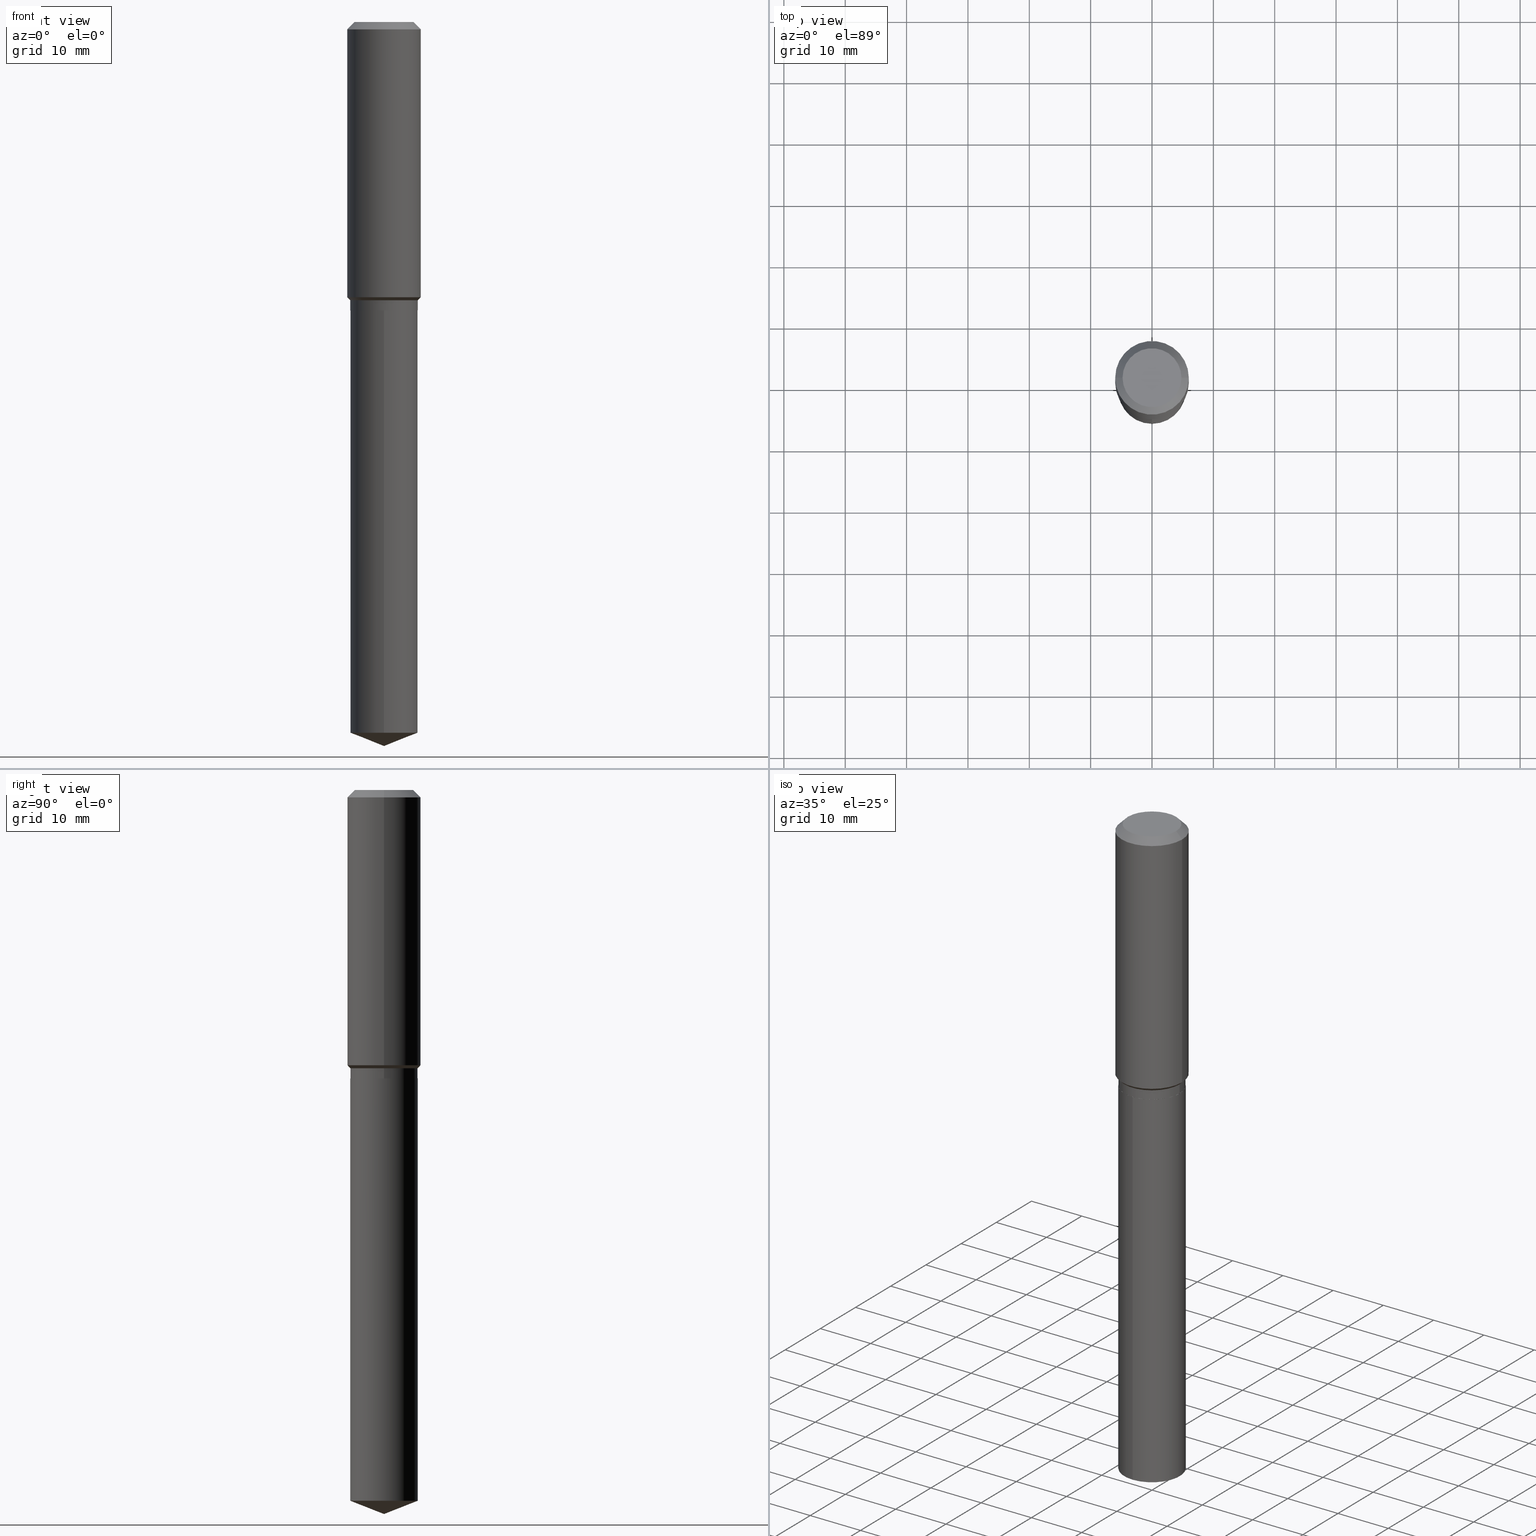
[diagram: canonical four-view strip — front | top / right | iso, engineering-drawing reading convention]
A machine part, canonical four-view strip (front | top / right | iso — engineering-drawing reading convention). The complete STEP part file that produces these views, byte-faithful:
ISO-10303-21;
HEADER;
FILE_DESCRIPTION (( 'STEP AP203' ),
    '1' );
FILE_NAME ('66583.STEP',
    '2024-04-25T01:25:55',
    ( '' ),
    ( '' ),
    'SwSTEP 2.0',
    'SolidWorks 2023',
    '' );
FILE_SCHEMA (( 'CONFIG_CONTROL_DESIGN' ));
ENDSEC;

DATA;
#1 = CYLINDRICAL_SURFACE ( 'NONE', #205, 0.2165500000000000203 ) ;
#2 = ADVANCED_FACE ( 'NONE', ( #372 ), #345, .T. ) ;
#3 = CALENDAR_DATE ( 2024, 24, 4 ) ;
#4 = DIRECTION ( 'NONE',  ( 2.445468806185136597E-29, -3.491481338843145583E-15, -1.000000000000000000 ) ) ;
#5 = COORDINATED_UNIVERSAL_TIME_OFFSET ( 5, 0, .BEHIND. ) ;
#6 = DIRECTION ( 'NONE',  ( 1.000000000000000000, -6.982962677686268288E-15, 0.000000000000000000 ) ) ;
#7 = AXIS2_PLACEMENT_3D ( 'NONE', #83, #35, #301 ) ;
#8 = ORIENTED_EDGE ( 'NONE', *, *, #283, .T. ) ;
#9 = ADVANCED_FACE ( 'NONE', ( #100 ), #333, .F. ) ;
#10 = DIRECTION ( 'NONE',  ( -2.445448598755098634E-29, 3.491510277033095475E-15, 1.000000000000000000 ) ) ;
#11 = AXIS2_PLACEMENT_3D ( 'NONE', #106, #255, #415 ) ;
#12 = VERTEX_POINT ( 'NONE', #142 ) ;
#13 = DIRECTION ( 'NONE',  ( 1.000000000000000000, -6.982962677686265922E-15, 4.876176775795935793E-29 ) ) ;
#14 = ORIENTED_EDGE ( 'NONE', *, *, #371, .T. ) ;
#15 = DIRECTION ( 'NONE',  ( 1.000000000000000000, -6.982962677686266711E-15, 0.000000000000000000 ) ) ;
#16 = VECTOR ( 'NONE', #427, 39.37007874015748143 ) ;
#17 = CC_DESIGN_APPROVAL ( #348, ( #215 ) ) ;
#18 = ORIENTED_EDGE ( 'NONE', *, *, #34, .T. ) ;
#19 = AXIS2_PLACEMENT_3D ( 'NONE', #133, #32, #216 ) ;
#20 = DIRECTION ( 'NONE',  ( -2.445468806185136597E-29, 3.491481338843145583E-15, 1.000000000000000000 ) ) ;
#21 = VERTEX_POINT ( 'NONE', #138 ) ;
#22 = SECURITY_CLASSIFICATION_LEVEL ( 'unclassified' ) ;
#23 = AXIS2_PLACEMENT_3D ( 'NONE', #189, #340, #421 ) ;
#24 = ORIENTED_EDGE ( 'NONE', *, *, #113, .T. ) ;
#25 = DIRECTION ( 'NONE',  ( 1.000000000000000000, -6.982962677686266711E-15, 0.000000000000000000 ) ) ;
#26 = DESIGN_CONTEXT ( 'detailed design', #38, 'design' ) ;
#27 = ORIENTED_EDGE ( 'NONE', *, *, #84, .T. ) ;
#28 = AXIS2_PLACEMENT_3D ( 'NONE', #472, #223, #302 ) ;
#29 = EDGE_CURVE ( 'NONE', #434, #195, #294, .T. ) ;
#30 = CARTESIAN_POINT ( 'NONE',  ( 0.2160500000000000198, -7.970353600311127505E-15, -1.850700000000000012 ) ) ;
#31 = CARTESIAN_POINT ( 'NONE',  ( -0.2165500000000000203, -4.808658205661399770E-15, -1.785700000000000065 ) ) ;
#32 = DIRECTION ( 'NONE',  ( -2.445468806185136597E-29, 3.491481338843145583E-15, 1.000000000000000000 ) ) ;
#33 = CIRCLE ( 'NONE', #473, 0.2165500000000000203 ) ;
#34 = EDGE_CURVE ( 'NONE', #21, #180, #481, .T. ) ;
#35 = DIRECTION ( 'NONE',  ( -2.445468806185136597E-29, 3.491481338843145583E-15, 1.000000000000000000 ) ) ;
#36 = COORDINATED_UNIVERSAL_TIME_OFFSET ( 5, 0, .BEHIND. ) ;
#37 = VECTOR ( 'NONE', #467, 39.37007874015748143 ) ;
#38 = APPLICATION_CONTEXT ( 'configuration controlled 3d designs of mechanical parts and assemblies' ) ;
#39 = APPROVAL_PERSON_ORGANIZATION ( #88, #348, #87 ) ;
#40 = CARTESIAN_POINT ( 'NONE',  ( 4.524606385203739825E-29, -6.459938773127588186E-15, -1.850200000000000067 ) ) ;
#41 = CALENDAR_DATE ( 2024, 24, 4 ) ;
#42 = DIRECTION ( 'NONE',  ( -2.445448598755098634E-29, 3.491510277033095475E-15, 1.000000000000000000 ) ) ;
#43 = CARTESIAN_POINT ( 'NONE',  ( 4.524606385203739825E-29, -6.459938773127588186E-15, -1.850200000000000067 ) ) ;
#44 = DATE_TIME_ROLE ( 'classification_date' ) ;
#45 = EDGE_CURVE ( 'NONE', #434, #67, #320, .T. ) ;
#46 = AXIS2_PLACEMENT_3D ( 'NONE', #462, #237, #256 ) ;
#47 = VECTOR ( 'NONE', #249, 39.37007874015748854 ) ;
#48 = CARTESIAN_POINT ( 'NONE',  ( 4.525829119606832626E-29, -6.461684513797009689E-15, -1.850700000000000012 ) ) ;
#49 = CALENDAR_DATE ( 2024, 24, 4 ) ;
#50 = CARTESIAN_POINT ( 'NONE',  ( 1.155239464041865506E-30, -1.649375784469511859E-16, -0.04724000000000028177 ) ) ;
#51 = EDGE_CURVE ( 'NONE', #12, #218, #285, .T. ) ;
#52 = ORIENTED_EDGE ( 'NONE', *, *, #457, .F. ) ;
#53 = CARTESIAN_POINT ( 'NONE',  ( -4.713871149261273121E-47, 6.730158695841826722E-33, 1.927594061857931128E-18 ) ) ;
#54 = CONICAL_SURFACE ( 'NONE', #175, 0.2160500000000000198, 0.7853981633975507526 ) ;
#55 = ORIENTED_EDGE ( 'NONE', *, *, #291, .T. ) ;
#56 = CARTESIAN_POINT ( 'NONE',  ( -0.2160500000000000198, -4.926556933187313491E-15, -1.850700000000000012 ) ) ;
#57 = ORIENTED_EDGE ( 'NONE', *, *, #463, .T. ) ;
#58 = PERSON ( 'UNSPECIFIED', 'UNSPECIFIED', 'UNSPECIFIED', ('UNSPECIFIED'), ('UNSPECIFIED'), ('UNSPECIFIED') ) ;
#59 = CARTESIAN_POINT ( 'NONE',  ( 0.2165500000000000203, -1.512160567852961217E-15, 1.055936080798610036E-29 ) ) ;
#60 = EDGE_LOOP ( 'NONE', ( #122, #413, #272, #94 ) ) ;
#61 = PLANE ( 'NONE',  #275 ) ;
#62 = EDGE_CURVE ( 'NONE', #180, #238, #280, .T. ) ;
#63 = VECTOR ( 'NONE', #10, 39.37007874015748143 ) ;
#64 = APPROVAL_PERSON_ORGANIZATION ( #407, #257, #338 ) ;
#65 = EDGE_LOOP ( 'NONE', ( #176, #314 ) ) ;
#66 = PERSON_AND_ORGANIZATION_ROLE ( 'creator' ) ;
#67 = VERTEX_POINT ( 'NONE', #288 ) ;
#68 = DIRECTION ( 'NONE',  ( 1.000000000000000000, -6.982962677686268288E-15, 0.000000000000000000 ) ) ;
#69 = ORIENTED_EDGE ( 'NONE', *, *, #62, .F. ) ;
#70 = CARTESIAN_POINT ( 'NONE',  ( 1.538680294288608129E-15, 0.2165499999999840330, -4.560698686505585187 ) ) ;
#71 = ORIENTED_EDGE ( 'NONE', *, *, #332, .T. ) ;
#72 = AXIS2_PLACEMENT_3D ( 'NONE', #347, #4, #154 ) ;
#73 = CLOSED_SHELL ( 'NONE', ( #96, #270, #364, #134, #9 ) ) ;
#74 = ORIENTED_EDGE ( 'NONE', *, *, #113, .F. ) ;
#75 = EDGE_CURVE ( 'NONE', #356, #432, #447, .T. ) ;
#76 = ORIENTED_EDGE ( 'NONE', *, *, #163, .F. ) ;
#77 = PERSON_AND_ORGANIZATION_ROLE ( 'design_owner' ) ;
#78 = FACE_OUTER_BOUND ( 'NONE', #166, .T. ) ;
#79 = DIRECTION ( 'NONE',  ( 0.000000000000000000, 0.000000000000000000, 1.000000000000000000 ) ) ;
#80 = AXIS2_PLACEMENT_3D ( 'NONE', #460, #321, #15 ) ;
#81 = DIRECTION ( 'NONE',  ( -2.445468806185136597E-29, 3.491481338843145583E-15, 1.000000000000000000 ) ) ;
#82 = AXIS2_PLACEMENT_3D ( 'NONE', #297, #474, #135 ) ;
#83 = CARTESIAN_POINT ( 'NONE',  ( 0.000000000000000000, 0.000000000000000000, 0.000000000000000000 ) ) ;
#84 = EDGE_CURVE ( 'NONE', #129, #367, #115, .T. ) ;
#85 = DIRECTION ( 'NONE',  ( 1.000000000000000000, -6.982962677686266711E-15, 0.000000000000000000 ) ) ;
#86 = CIRCLE ( 'NONE', #319, 0.2361999999999999933 ) ;
#87 = APPROVAL_ROLE ( '' ) ;
#88 = PERSON_AND_ORGANIZATION ( #58, #149 ) ;
#89 = ORIENTED_EDGE ( 'NONE', *, *, #486, .F. ) ;
#90 = FACE_OUTER_BOUND ( 'NONE', #354, .T. ) ;
#91 = ORIENTED_EDGE ( 'NONE', *, *, #84, .F. ) ;
#92 = CARTESIAN_POINT ( 'NONE',  ( 0.2361999999999999933, -1.785387205520586782E-15, -0.04724000000000028177 ) ) ;
#93 = CONICAL_SURFACE ( 'NONE', #377, 99.94676754583946376, 1.195550537616117737 ) ;
#94 = ORIENTED_EDGE ( 'NONE', *, *, #371, .F. ) ;
#95 = CARTESIAN_POINT ( 'NONE',  ( 0.2160500000000000198, -7.970353600311127505E-15, -1.850700000000000012 ) ) ;
#96 = ADVANCED_FACE ( 'NONE', ( #78 ), #183, .T. ) ;
#97 = LINE ( 'NONE', #197, #37 ) ;
#98 = EDGE_LOOP ( 'NONE', ( #231, #71, #446, #159 ) ) ;
#99 = DIRECTION ( 'NONE',  ( 2.438088387897960049E-29, -3.491481338843145188E-15, -1.000000000000000000 ) ) ;
#100 = FACE_OUTER_BOUND ( 'NONE', #330, .T. ) ;
#101 = CARTESIAN_POINT ( 'NONE',  ( 4.366873647204798142E-29, -6.234738226772205548E-15, -1.785700000000000065 ) ) ;
#102 = EDGE_CURVE ( 'NONE', #236, #195, #416, .T. ) ;
#103 = ORIENTED_EDGE ( 'NONE', *, *, #193, .F. ) ;
#104 = CARTESIAN_POINT ( 'NONE',  ( 4.525829119606832626E-29, -6.461684513797009689E-15, -1.850700000000000012 ) ) ;
#105 = DIRECTION ( 'NONE',  ( -2.445468806185136877E-29, 3.491481338843145188E-15, 1.000000000000000000 ) ) ;
#106 = CARTESIAN_POINT ( 'NONE',  ( 4.525829119606832626E-29, -6.461684513797009689E-15, -1.850700000000000012 ) ) ;
#107 = CC_DESIGN_PERSON_AND_ORGANIZATION_ASSIGNMENT ( #455, #66, ( #351 ) ) ;
#108 = MANIFOLD_SOLID_BREP ( 'Body-Move/Copy2[1]', #73 ) ;
#109 = FACE_OUTER_BOUND ( 'NONE', #233, .T. ) ;
#110 = COORDINATED_UNIVERSAL_TIME_OFFSET ( 5, 0, .BEHIND. ) ;
#111 = FACE_OUTER_BOUND ( 'NONE', #293, .T. ) ;
#112 = VECTOR ( 'NONE', #456, 39.37007874015748143 ) ;
#113 = EDGE_CURVE ( 'NONE', #367, #129, #33, .T. ) ;
#114 = CARTESIAN_POINT ( 'NONE',  ( 4.525829119606832626E-29, -6.461684513797009689E-15, -1.850700000000000012 ) ) ;
#115 = CIRCLE ( 'NONE', #11, 0.2165500000000000203 ) ;
#116 = CARTESIAN_POINT ( 'NONE',  ( 0.2362000000000001043, -1.649375784469496920E-15, 1.151752954443000508E-29 ) ) ;
#117 = SHAPE_DEFINITION_REPRESENTATION ( #198, #151 ) ;
#118 = EDGE_CURVE ( 'NONE', #213, #325, #259, .T. ) ;
#119 = LINE ( 'NONE', #203, #423 ) ;
#120 = ORIENTED_EDGE ( 'NONE', *, *, #152, .F. ) ;
#121 = DIRECTION ( 'NONE',  ( 1.000000000000000000, -6.982962677686268288E-15, 0.000000000000000000 ) ) ;
#122 = ORIENTED_EDGE ( 'NONE', *, *, #75, .F. ) ;
#123 = CARTESIAN_POINT ( 'NONE',  ( 4.525829119606832626E-29, -6.461684513797009689E-15, -1.850700000000000012 ) ) ;
#124 = EDGE_LOOP ( 'NONE', ( #120, #18, #89 ) ) ;
#125 = DIRECTION ( 'NONE',  ( -2.438088387897960049E-29, 3.491481338843145188E-15, 1.000000000000000000 ) ) ;
#126 = VECTOR ( 'NONE', #418, 39.37007874015748143 ) ;
#127 = AXIS2_PLACEMENT_3D ( 'NONE', #290, #79, #225 ) ;
#128 = ADVANCED_FACE ( 'NONE', ( #375 ), #190, .T. ) ;
#129 = VERTEX_POINT ( 'NONE', #336 ) ;
#130 = FACE_OUTER_BOUND ( 'NONE', #65, .T. ) ;
#131 = ORIENTED_EDGE ( 'NONE', *, *, #486, .T. ) ;
#132 = DIRECTION ( 'NONE',  ( -2.445468806185136877E-29, 3.491481338843145188E-15, 1.000000000000000000 ) ) ;
#133 = CARTESIAN_POINT ( 'NONE',  ( 4.366873647204798142E-29, -6.234738226772205548E-15, -1.785700000000000065 ) ) ;
#134 = ADVANCED_FACE ( 'NONE', ( #109 ), #343, .T. ) ;
#135 = DIRECTION ( 'NONE',  ( -6.982962677686265133E-15, -1.000000000000000000, 2.523064413451178124E-15 ) ) ;
#136 =( LENGTH_UNIT ( ) NAMED_UNIT ( * ) SI_UNIT ( $, .METRE. ) );
#137 = DIRECTION ( 'NONE',  ( 1.000000000000000000, -6.982962677686266711E-15, 4.876176775795935793E-29 ) ) ;
#138 = CARTESIAN_POINT ( 'NONE',  ( 1.136155418981619075E-28, -1.622155674709576267E-14, -4.645999999999999908 ) ) ;
#139 = CARTESIAN_POINT ( 'NONE',  ( 0.2165500000000000203, -7.746898794625167159E-15, -1.785700000000000065 ) ) ;
#140 = CIRCLE ( 'NONE', #80, 0.2361999999999999933 ) ;
#141 = EDGE_CURVE ( 'NONE', #238, #367, #224, .T. ) ;
#142 = CARTESIAN_POINT ( 'NONE',  ( 0.2165500000000000203, -7.746898794625167159E-15, -1.785700000000000065 ) ) ;
#143 = FACE_OUTER_BOUND ( 'NONE', #471, .T. ) ;
#144 = CYLINDRICAL_SURFACE ( 'NONE', #7, 0.2165500000000000203 ) ;
#145 =( CONVERSION_BASED_UNIT ( 'INCH', #476 ) LENGTH_UNIT ( ) NAMED_UNIT ( #388 ) );
#146 = CARTESIAN_POINT ( 'NONE',  ( 4.318820185163259676E-29, -6.166130618463936908E-15, -1.766049999999999898 ) ) ;
#147 = APPLICATION_PROTOCOL_DEFINITION ( 'international standard', 'config_control_design', 1994, #299 ) ;
#148 = CIRCLE ( 'NONE', #46, 0.2362000000000002153 ) ;
#149 = ORGANIZATION ( 'UNSPECIFIED', 'UNSPECIFIED', '' ) ;
#150 = DIRECTION ( 'NONE',  ( -2.445468806185136597E-29, 3.491481338843145583E-15, 1.000000000000000000 ) ) ;
#151 = ADVANCED_BREP_SHAPE_REPRESENTATION ( '66583', ( #108, #435, #127 ), #244 ) ;
#152 = EDGE_CURVE ( 'NONE', #21, #238, #484, .T. ) ;
#153 = AXIS2_PLACEMENT_3D ( 'NONE', #40, #81, #222 ) ;
#154 = DIRECTION ( 'NONE',  ( -1.000000000000000000, 6.982962677686266711E-15, 0.000000000000000000 ) ) ;
#155 = APPROVAL_DATE_TIME ( #309, #348 ) ;
#156 = ORIENTED_EDGE ( 'NONE', *, *, #45, .T. ) ;
#157 = VECTOR ( 'NONE', #487, 39.37007874015748143 ) ;
#158 = LINE ( 'NONE', #313, #63 ) ;
#159 = ORIENTED_EDGE ( 'NONE', *, *, #305, .F. ) ;
#160 = CYLINDRICAL_SURFACE ( 'NONE', #360, 0.2362000000000001043 ) ;
#161 = EDGE_LOOP ( 'NONE', ( #156, #55, #400, #199 ) ) ;
#162 = DIRECTION ( 'NONE',  ( -1.000000000000000000, 6.982962677686266711E-15, 0.000000000000000000 ) ) ;
#163 = EDGE_CURVE ( 'NONE', #218, #389, #380, .T. ) ;
#164 = ORIENTED_EDGE ( 'NONE', *, *, #207, .T. ) ;
#165 = DIRECTION ( 'NONE',  ( -0.7071067811865453523, 2.468850131082234184E-15, -0.7071067811865496822 ) ) ;
#166 = EDGE_LOOP ( 'NONE', ( #464, #398, #91, #52 ) ) ;
#167 = PLANE ( 'NONE',  #368 ) ;
#168 = VECTOR ( 'NONE', #105, 39.37007874015748143 ) ;
#169 = PRODUCT_RELATED_PRODUCT_CATEGORY ( 'detail', '', ( #289 ) ) ;
#170 = EDGE_LOOP ( 'NONE', ( #316, #410, #69 ) ) ;
#171 = PERSON_AND_ORGANIZATION ( #58, #149 ) ;
#172 = CARTESIAN_POINT ( 'NONE',  ( 1.136155418981619075E-28, -1.622155674709576267E-14, -4.645999999999999908 ) ) ;
#173 =( NAMED_UNIT ( * ) SI_UNIT ( $, .STERADIAN. ) SOLID_ANGLE_UNIT ( ) );
#174 = FACE_OUTER_BOUND ( 'NONE', #466, .T. ) ;
#175 = AXIS2_PLACEMENT_3D ( 'NONE', #48, #448, #85 ) ;
#176 = ORIENTED_EDGE ( 'NONE', *, *, #45, .F. ) ;
#177 = CARTESIAN_POINT ( 'NONE',  ( -8.491591230028904489E-28, 1.212395313376744083E-13, 34.72407874015748064 ) ) ;
#178 = ORIENTED_EDGE ( 'NONE', *, *, #479, .T. ) ;
#179 = ADVANCED_FACE ( 'NONE', ( #385 ), #144, .T. ) ;
#180 = VERTEX_POINT ( 'NONE', #187 ) ;
#181 = DIRECTION ( 'NONE',  ( -2.445468806185136597E-29, 3.491481338843145583E-15, 1.000000000000000000 ) ) ;
#182 = AXIS2_PLACEMENT_3D ( 'NONE', #43, #150, #212 ) ;
#183 = CYLINDRICAL_SURFACE ( 'NONE', #23, 0.2165500000000000203 ) ;
#184 = PERSON_AND_ORGANIZATION_ROLE ( 'creator' ) ;
#185 = DIRECTION ( 'NONE',  ( -2.445468806185136597E-29, 3.491481338843145583E-15, 1.000000000000000000 ) ) ;
#186 = ADVANCED_FACE ( 'NONE', ( #143 ), #54, .T. ) ;
#187 = CARTESIAN_POINT ( 'NONE',  ( -1.512160567852848804E-15, -0.2165500000000158409, -4.560698686505584298 ) ) ;
#188 = PERSON_AND_ORGANIZATION ( #58, #149 ) ;
#189 = CARTESIAN_POINT ( 'NONE',  ( 4.525829119606832626E-29, -6.461684513797009689E-15, -1.850700000000000012 ) ) ;
#190 = CONICAL_SURFACE ( 'NONE', #308, 0.2160500000000000198, 0.7853981633975507526 ) ;
#191 = ADVANCED_FACE ( 'NONE', ( #111 ), #1, .T. ) ;
#192 = FACE_OUTER_BOUND ( 'NONE', #208, .T. ) ;
#193 = EDGE_CURVE ( 'NONE', #356, #218, #262, .T. ) ;
#194 = DIRECTION ( 'NONE',  ( 2.445468806185136597E-29, -3.491481338843145583E-15, -1.000000000000000000 ) ) ;
#195 = VERTEX_POINT ( 'NONE', #382 ) ;
#196 = CIRCLE ( 'NONE', #28, 0.2165500000000000203 ) ;
#197 = CARTESIAN_POINT ( 'NONE',  ( -0.2165500000000000203, 1.538680294288497096E-15, -1.065195393794699923E-29 ) ) ;
#198 = PRODUCT_DEFINITION_SHAPE ( 'NONE', 'NONE',  #436 ) ;
#199 = ORIENTED_EDGE ( 'NONE', *, *, #29, .F. ) ;
#200 = EDGE_CURVE ( 'NONE', #195, #236, #228, .T. ) ;
#201 = DIRECTION ( 'NONE',  ( 1.000000000000000000, -6.982962677686266711E-15, 0.000000000000000000 ) ) ;
#202 = EDGE_LOOP ( 'NONE', ( #424, #178, #219, #103 ) ) ;
#203 = CARTESIAN_POINT ( 'NONE',  ( -0.2165500000000000203, -4.696057932483708451E-15, -1.785700000000000065 ) ) ;
#204 = ORIENTED_EDGE ( 'NONE', *, *, #305, .T. ) ;
#205 = AXIS2_PLACEMENT_3D ( 'NONE', #422, #265, #489 ) ;
#206 = DIRECTION ( 'NONE',  ( -0.7071067811865481278, 7.493145998870357316E-15, 0.7071067811865469066 ) ) ;
#207 = EDGE_CURVE ( 'NONE', #67, #434, #453, .T. ) ;
#208 = EDGE_LOOP ( 'NONE', ( #478, #469, #204, #14 ) ) ;
#209 = PERSON_AND_ORGANIZATION ( #58, #149 ) ;
#210 = VERTEX_POINT ( 'NONE', #31 ) ;
#211 = CALENDAR_DATE ( 2024, 24, 4 ) ;
#212 = DIRECTION ( 'NONE',  ( 1.000000000000000000, -6.982962677686268288E-15, 0.000000000000000000 ) ) ;
#213 = VERTEX_POINT ( 'NONE', #374 ) ;
#214 = CYLINDRICAL_SURFACE ( 'NONE', #242, 0.2362000000000001043 ) ;
#215 = SECURITY_CLASSIFICATION ( '', '', #22 ) ;
#216 = DIRECTION ( 'NONE',  ( 1.000000000000000000, -6.982962677686268288E-15, 0.000000000000000000 ) ) ;
#217 = EDGE_CURVE ( 'NONE', #325, #213, #411, .T. ) ;
#218 = VERTEX_POINT ( 'NONE', #441 ) ;
#219 = ORIENTED_EDGE ( 'NONE', *, *, #51, .T. ) ;
#220 = AXIS2_PLACEMENT_3D ( 'NONE', #303, #185, #451 ) ;
#221 = ADVANCED_FACE ( 'NONE', ( #174 ), #214, .T. ) ;
#222 = DIRECTION ( 'NONE',  ( 1.000000000000000000, -6.982962677686268288E-15, 0.000000000000000000 ) ) ;
#223 = DIRECTION ( 'NONE',  ( -2.445448598755098634E-29, 3.491510277033095475E-15, 1.000000000000000000 ) ) ;
#224 = LINE ( 'NONE', #337, #157 ) ;
#225 = DIRECTION ( 'NONE',  ( 1.000000000000000000, 0.000000000000000000, 0.000000000000000000 ) ) ;
#226 = DIRECTION ( 'NONE',  ( 1.000000000000000000, -6.982962677686266711E-15, 0.000000000000000000 ) ) ;
#227 = DIRECTION ( 'NONE',  ( -6.982962677686265133E-15, -1.000000000000000000, 3.784596620176766988E-15 ) ) ;
#228 = CIRCLE ( 'NONE', #182, 0.2165500000000000203 ) ;
#229 = APPROVAL_STATUS ( 'not_yet_approved' ) ;
#230 = CC_DESIGN_DATE_AND_TIME_ASSIGNMENT ( #440, #341, ( #436 ) ) ;
#231 = ORIENTED_EDGE ( 'NONE', *, *, #118, .F. ) ;
#232 = FACE_OUTER_BOUND ( 'NONE', #395, .T. ) ;
#233 = EDGE_LOOP ( 'NONE', ( #268, #131, #461, #74 ) ) ;
#234 = CIRCLE ( 'NONE', #267, 0.2165500000000000203 ) ;
#235 = CARTESIAN_POINT ( 'NONE',  ( -0.2362000000000002153, -4.487828676598578936E-15, -1.766049999999999898 ) ) ;
#236 = VERTEX_POINT ( 'NONE', #292 ) ;
#237 = DIRECTION ( 'NONE',  ( -2.445468806185136597E-29, 3.491481338843145583E-15, 1.000000000000000000 ) ) ;
#238 = VERTEX_POINT ( 'NONE', #70 ) ;
#239 = CC_DESIGN_PERSON_AND_ORGANIZATION_ASSIGNMENT ( #209, #363, ( #351 ) ) ;
#240 = LINE ( 'NONE', #92, #295 ) ;
#241 = ORIENTED_EDGE ( 'NONE', *, *, #312, .T. ) ;
#242 = AXIS2_PLACEMENT_3D ( 'NONE', #329, #477, #137 ) ;
#243 = CARTESIAN_POINT ( 'NONE',  ( 4.366873647204798142E-29, -6.234738226772205548E-15, -1.785700000000000065 ) ) ;
#244 =( GEOMETRIC_REPRESENTATION_CONTEXT ( 3 ) GLOBAL_UNCERTAINTY_ASSIGNED_CONTEXT ( ( #261 ) ) GLOBAL_UNIT_ASSIGNED_CONTEXT ( ( #145, #443, #173 ) ) REPRESENTATION_CONTEXT ( 'NONE', 'WORKASPACE' ) );
#245 = ORIENTED_EDGE ( 'NONE', *, *, #298, .F. ) ;
#246 = DIRECTION ( 'NONE',  ( -2.445468806185136597E-29, 3.491481338843145583E-15, 1.000000000000000000 ) ) ;
#247 = DIRECTION ( 'NONE',  ( 0.7071067811866199593, -2.468850131083015945E-15, 0.7071067811864750752 ) ) ;
#248 = DIRECTION ( 'NONE',  ( -2.445468806185136597E-29, 3.491481338843145583E-15, 1.000000000000000000 ) ) ;
#249 = DIRECTION ( 'NONE',  ( -6.497071151882115892E-15, -0.9304175679820240186, 0.3665012267242986899 ) ) ;
#250 = AXIS2_PLACEMENT_3D ( 'NONE', #258, #42, #378 ) ;
#251 = CONICAL_SURFACE ( 'NONE', #342, 99.94676754583946376, 1.195550537616117737 ) ;
#252 = VECTOR ( 'NONE', #247, 39.37007874015748143 ) ;
#253 = ORIENTED_EDGE ( 'NONE', *, *, #102, .F. ) ;
#254 = VECTOR ( 'NONE', #327, 39.37007874015748143 ) ;
#255 = DIRECTION ( 'NONE',  ( -2.445448598755098634E-29, 3.491510277033095475E-15, 1.000000000000000000 ) ) ;
#256 = DIRECTION ( 'NONE',  ( 1.000000000000000000, -6.982962677686266711E-15, 0.000000000000000000 ) ) ;
#257 = APPROVAL ( #376, 'UNSPECIFIED' ) ;
#258 = CARTESIAN_POINT ( 'NONE',  ( 4.525829119606832626E-29, -6.461684513797009689E-15, -1.850700000000000012 ) ) ;
#259 = CIRCLE ( 'NONE', #220, 0.1889600000000000168 ) ;
#260 = APPROVAL_ROLE ( '' ) ;
#261 = UNCERTAINTY_MEASURE_WITH_UNIT (LENGTH_MEASURE( 1.000000000000000082E-05 ), #145, 'distance_accuracy_value', 'NONE');
#262 = CIRCLE ( 'NONE', #391, 0.2362000000000002153 ) ;
#263 = DIRECTION ( 'NONE',  ( -2.445448598755098634E-29, 3.491510277033095475E-15, 1.000000000000000000 ) ) ;
#264 = DIRECTION ( 'NONE',  ( 1.000000000000000000, -6.982962677686266711E-15, 0.000000000000000000 ) ) ;
#265 = DIRECTION ( 'NONE',  ( -2.445468806185136597E-29, 3.491481338843145583E-15, 1.000000000000000000 ) ) ;
#266 = CC_DESIGN_PERSON_AND_ORGANIZATION_ASSIGNMENT ( #488, #184, ( #436 ) ) ;
#267 = AXIS2_PLACEMENT_3D ( 'NONE', #243, #273, #121 ) ;
#268 = ORIENTED_EDGE ( 'NONE', *, *, #141, .F. ) ;
#269 = CARTESIAN_POINT ( 'NONE',  ( 0.000000000000000000, 0.000000000000000000, 0.000000000000000000 ) ) ;
#270 = ADVANCED_FACE ( 'NONE', ( #480 ), #251, .T. ) ;
#271 = COORDINATED_UNIVERSAL_TIME_OFFSET ( 5, 0, .BEHIND. ) ;
#272 = ORIENTED_EDGE ( 'NONE', *, *, #163, .T. ) ;
#273 = DIRECTION ( 'NONE',  ( -2.445468806185136597E-29, 3.491481338843145583E-15, 1.000000000000000000 ) ) ;
#274 = ORIENTED_EDGE ( 'NONE', *, *, #200, .T. ) ;
#275 = AXIS2_PLACEMENT_3D ( 'NONE', #123, #125, #13 ) ;
#276 = CARTESIAN_POINT ( 'NONE',  ( 4.366873647204798142E-29, -6.234738226772205548E-15, -1.785700000000000065 ) ) ;
#277 = CLOSED_SHELL ( 'NONE', ( #128, #405, #221, #414, #179, #191, #2, #358, #278, #381, #373, #186 ) ) ;
#278 = ADVANCED_FACE ( 'NONE', ( #192 ), #428, .T. ) ;
#279 = ORIENTED_EDGE ( 'NONE', *, *, #322, .T. ) ;
#280 = CIRCLE ( 'NONE', #82, 0.2165500000000000203 ) ;
#281 = CARTESIAN_POINT ( 'NONE',  ( 1.155239464041865506E-30, -1.649375784469511859E-16, -0.04724000000000028177 ) ) ;
#282 = ORIENTED_EDGE ( 'NONE', *, *, #29, .T. ) ;
#283 = EDGE_CURVE ( 'NONE', #210, #356, #119, .T. ) ;
#284 = FACE_OUTER_BOUND ( 'NONE', #98, .T. ) ;
#285 = LINE ( 'NONE', #139, #254 ) ;
#286 = CONICAL_SURFACE ( 'NONE', #350, 0.2361999999999999933, 0.7853981633974452814 ) ;
#287 = DIRECTION ( 'NONE',  ( 1.000000000000000000, -6.982962677686266711E-15, 4.876185090822587894E-29 ) ) ;
#288 = CARTESIAN_POINT ( 'NONE',  ( -0.2160500000000000198, -4.923907706013202290E-15, -1.850700000000000012 ) ) ;
#289 = PRODUCT ( '66583', '66583', '', ( #417 ) ) ;
#290 = CARTESIAN_POINT ( 'NONE',  ( 0.000000000000000000, 0.000000000000000000, 0.000000000000000000 ) ) ;
#291 = EDGE_CURVE ( 'NONE', #67, #236, #357, .T. ) ;
#292 = CARTESIAN_POINT ( 'NONE',  ( -0.2165500000000000203, -4.808658205661399770E-15, -1.850200000000000067 ) ) ;
#293 = EDGE_LOOP ( 'NONE', ( #311, #359, #318, #352 ) ) ;
#294 = LINE ( 'NONE', #30, #252 ) ;
#295 = VECTOR ( 'NONE', #437, 39.37007874015748143 ) ;
#296 = LOCAL_TIME ( 21, 25, 54.00000000000000000, #271 ) ;
#297 = CARTESIAN_POINT ( 'NONE',  ( 1.115299161015007237E-28, -1.592367277847744930E-14, -4.560698686505585187 ) ) ;
#298 = EDGE_CURVE ( 'NONE', #389, #432, #86, .T. ) ;
#299 = APPLICATION_CONTEXT ( 'configuration controlled 3d designs of mechanical parts and assemblies' ) ;
#300 = DIRECTION ( 'NONE',  ( -2.445468806185136597E-29, 3.491481338843145583E-15, 1.000000000000000000 ) ) ;
#301 = DIRECTION ( 'NONE',  ( 1.000000000000000000, -6.982962677686266711E-15, 4.876176775795935793E-29 ) ) ;
#302 = DIRECTION ( 'NONE',  ( -6.982962677686265133E-15, -1.000000000000000000, 2.523064413451178124E-15 ) ) ;
#303 = CARTESIAN_POINT ( 'NONE',  ( -9.427742298522546243E-47, 1.346031739168365344E-32, 3.855188123715862256E-18 ) ) ;
#304 = COORDINATED_UNIVERSAL_TIME_OFFSET ( 5, 0, .BEHIND. ) ;
#305 = EDGE_CURVE ( 'NONE', #325, #432, #317, .T. ) ;
#306 = CARTESIAN_POINT ( 'NONE',  ( 4.525829119606832626E-29, -6.461684513797009689E-15, -1.850700000000000012 ) ) ;
#307 = DATE_AND_TIME ( #49, #344 ) ;
#308 = AXIS2_PLACEMENT_3D ( 'NONE', #306, #300, #264 ) ;
#309 = DATE_AND_TIME ( #3, #296 ) ;
#310 = CC_DESIGN_SECURITY_CLASSIFICATION ( #215, ( #351 ) ) ;
#311 = ORIENTED_EDGE ( 'NONE', *, *, #322, .F. ) ;
#312 = EDGE_CURVE ( 'NONE', #12, #210, #234, .T. ) ;
#313 = CARTESIAN_POINT ( 'NONE',  ( -1.512160567852915463E-15, -0.2165500000000064595, -1.850699999999999124 ) ) ;
#314 = ORIENTED_EDGE ( 'NONE', *, *, #207, .F. ) ;
#315 = DIRECTION ( 'NONE',  ( -2.445448598755098634E-29, 3.491510277033095475E-15, 1.000000000000000000 ) ) ;
#316 = ORIENTED_EDGE ( 'NONE', *, *, #34, .F. ) ;
#317 = LINE ( 'NONE', #465, #328 ) ;
#318 = ORIENTED_EDGE ( 'NONE', *, *, #396, .T. ) ;
#319 = AXIS2_PLACEMENT_3D ( 'NONE', #281, #431, #201 ) ;
#320 = CIRCLE ( 'NONE', #404, 0.2160500000000000198 ) ;
#321 = DIRECTION ( 'NONE',  ( -2.445468806185136597E-29, 3.491481338843145583E-15, 1.000000000000000000 ) ) ;
#322 = EDGE_CURVE ( 'NONE', #236, #210, #97, .T. ) ;
#323 = ORIENTED_EDGE ( 'NONE', *, *, #75, .T. ) ;
#324 = CARTESIAN_POINT ( 'NONE',  ( 0.2361999999999999933, -1.814313362916447440E-15, -0.04724000000000028177 ) ) ;
#325 = VERTEX_POINT ( 'NONE', #397 ) ;
#326 = PERSON_AND_ORGANIZATION_ROLE ( 'classification_officer' ) ;
#327 = DIRECTION ( 'NONE',  ( 0.7071067811865481278, -2.468850131082263371E-15, 0.7071067811865469066 ) ) ;
#328 = VECTOR ( 'NONE', #165, 39.37007874015748143 ) ;
#329 = CARTESIAN_POINT ( 'NONE',  ( 0.000000000000000000, 0.000000000000000000, 0.000000000000000000 ) ) ;
#330 = EDGE_LOOP ( 'NONE', ( #27, #24 ) ) ;
#331 = DIRECTION ( 'NONE',  ( -2.445468806185136597E-29, 3.491481338843145583E-15, 1.000000000000000000 ) ) ;
#332 = EDGE_CURVE ( 'NONE', #213, #389, #240, .T. ) ;
#333 = PLANE ( 'NONE',  #346 ) ;
#334 = CIRCLE ( 'NONE', #401, 0.2165500000000000203 ) ;
#335 = LOCAL_TIME ( 21, 25, 54.00000000000000000, #304 ) ;
#336 = CARTESIAN_POINT ( 'NONE',  ( -1.512160567852915463E-15, -0.2165500000000064595, -1.850699999999999124 ) ) ;
#337 = CARTESIAN_POINT ( 'NONE',  ( 1.538680294288542061E-15, 0.2165499999999935532, -1.850700000000000900 ) ) ;
#338 = APPROVAL_ROLE ( '' ) ;
#339 = DIRECTION ( 'NONE',  ( -6.982962677686266711E-15, -1.000000000000000000, 3.498627837350021972E-15 ) ) ;
#340 = DIRECTION ( 'NONE',  ( -2.445448598755098634E-29, 3.491510277033095475E-15, 1.000000000000000000 ) ) ;
#341 = DATE_TIME_ROLE ( 'creation_date' ) ;
#342 = AXIS2_PLACEMENT_3D ( 'NONE', #177, #386, #339 ) ;
#343 = CYLINDRICAL_SURFACE ( 'NONE', #250, 0.2165500000000000203 ) ;
#344 = LOCAL_TIME ( 21, 25, 54.00000000000000000, #5 ) ;
#345 = CONICAL_SURFACE ( 'NONE', #19, 0.2165500000000000203, 0.7853981633974491672 ) ;
#346 = AXIS2_PLACEMENT_3D ( 'NONE', #365, #444, #482 ) ;
#347 = CARTESIAN_POINT ( 'NONE',  ( 1.155239464041865506E-30, -1.649375784469511859E-16, -0.04724000000000028177 ) ) ;
#348 = APPROVAL ( #229, 'UNSPECIFIED' ) ;
#349 = DIRECTION ( 'NONE',  ( -2.445468806185136597E-29, 3.491481338843145583E-15, 1.000000000000000000 ) ) ;
#350 = AXIS2_PLACEMENT_3D ( 'NONE', #50, #194, #162 ) ;
#351 = PRODUCT_DEFINITION_FORMATION_WITH_SPECIFIED_SOURCE ( 'ANY', '', #289, .NOT_KNOWN. ) ;
#352 = ORIENTED_EDGE ( 'NONE', *, *, #479, .F. ) ;
#353 = CARTESIAN_POINT ( 'NONE',  ( -0.2361999999999999933, -1.487232156590086334E-15, -0.04724000000000028177 ) ) ;
#354 = EDGE_LOOP ( 'NONE', ( #438, #430 ) ) ;
#355 = CARTESIAN_POINT ( 'NONE',  ( -8.491591230028904489E-28, 1.212395313376744083E-13, 34.72407874015748064 ) ) ;
#356 = VERTEX_POINT ( 'NONE', #235 ) ;
#357 = LINE ( 'NONE', #56, #16 ) ;
#358 = ADVANCED_FACE ( 'NONE', ( #394 ), #160, .T. ) ;
#359 = ORIENTED_EDGE ( 'NONE', *, *, #102, .T. ) ;
#360 = AXIS2_PLACEMENT_3D ( 'NONE', #269, #20, #361 ) ;
#361 = DIRECTION ( 'NONE',  ( 1.000000000000000000, -6.982962677686266711E-15, 4.876176775795935793E-29 ) ) ;
#362 = ORIENTED_EDGE ( 'NONE', *, *, #463, .F. ) ;
#363 = PERSON_AND_ORGANIZATION_ROLE ( 'design_supplier' ) ;
#364 = ADVANCED_FACE ( 'NONE', ( #433 ), #93, .T. ) ;
#365 = CARTESIAN_POINT ( 'NONE',  ( 4.525829119606832626E-29, -6.461684513797009689E-15, -1.850700000000000012 ) ) ;
#366 = PERSON_AND_ORGANIZATION ( #58, #149 ) ;
#367 = VERTEX_POINT ( 'NONE', #399 ) ;
#368 = AXIS2_PLACEMENT_3D ( 'NONE', #53, #99, #390 ) ;
#369 = CARTESIAN_POINT ( 'NONE',  ( 4.525829119606832626E-29, -6.461684513797009689E-15, -1.850700000000000012 ) ) ;
#370 = DIRECTION ( 'NONE',  ( 1.000000000000000000, -6.982962677686266711E-15, 0.000000000000000000 ) ) ;
#371 = EDGE_CURVE ( 'NONE', #432, #389, #140, .T. ) ;
#372 = FACE_OUTER_BOUND ( 'NONE', #202, .T. ) ;
#373 = ADVANCED_FACE ( 'NONE', ( #130 ), #61, .F. ) ;
#374 = CARTESIAN_POINT ( 'NONE',  ( 0.1889600000000000168, -1.540873453589747738E-15, 3.855188123725863225E-18 ) ) ;
#375 = FACE_OUTER_BOUND ( 'NONE', #161, .T. ) ;
#376 = APPROVAL_STATUS ( 'not_yet_approved' ) ;
#377 = AXIS2_PLACEMENT_3D ( 'NONE', #355, #315, #425 ) ;
#378 = DIRECTION ( 'NONE',  ( -6.982962677686265133E-15, -1.000000000000000000, 3.784596620176766988E-15 ) ) ;
#379 = APPROVAL_DATE_TIME ( #419, #450 ) ;
#380 = LINE ( 'NONE', #116, #126 ) ;
#381 = ADVANCED_FACE ( 'NONE', ( #90 ), #167, .F. ) ;
#382 = CARTESIAN_POINT ( 'NONE',  ( 0.2165500000000000203, -7.972099340980549797E-15, -1.850200000000000067 ) ) ;
#383 = VECTOR ( 'NONE', #132, 39.37007874015748143 ) ;
#384 = CC_DESIGN_APPROVAL ( #450, ( #351 ) ) ;
#385 = FACE_OUTER_BOUND ( 'NONE', #406, .T. ) ;
#386 = DIRECTION ( 'NONE',  ( -2.445448598755098634E-29, 3.491510277033095475E-15, 1.000000000000000000 ) ) ;
#387 = CC_DESIGN_DATE_AND_TIME_ASSIGNMENT ( #307, #44, ( #215 ) ) ;
#388 = DIMENSIONAL_EXPONENTS ( 1.000000000000000000, 0.000000000000000000, 0.000000000000000000, 0.000000000000000000, 0.000000000000000000, 0.000000000000000000, 0.000000000000000000 ) ;
#389 = VERTEX_POINT ( 'NONE', #324 ) ;
#390 = DIRECTION ( 'NONE',  ( -1.000000000000000000, 6.982962677686265922E-15, -4.876176775795935793E-29 ) ) ;
#391 = AXIS2_PLACEMENT_3D ( 'NONE', #146, #454, #226 ) ;
#392 = APPROVAL_PERSON_ORGANIZATION ( #366, #450, #260 ) ;
#393 = ORIENTED_EDGE ( 'NONE', *, *, #51, .F. ) ;
#394 = FACE_OUTER_BOUND ( 'NONE', #60, .T. ) ;
#395 = EDGE_LOOP ( 'NONE', ( #241, #8, #362, #393 ) ) ;
#396 = EDGE_CURVE ( 'NONE', #195, #12, #470, .T. ) ;
#397 = CARTESIAN_POINT ( 'NONE',  ( -0.1889600000000000168, 1.401969416799070942E-15, 3.855188123706346622E-18 ) ) ;
#398 = ORIENTED_EDGE ( 'NONE', *, *, #141, .T. ) ;
#399 = CARTESIAN_POINT ( 'NONE',  ( 1.538680294288608917E-15, 0.2165499999999935532, -1.850700000000000900 ) ) ;
#400 = ORIENTED_EDGE ( 'NONE', *, *, #200, .F. ) ;
#401 = AXIS2_PLACEMENT_3D ( 'NONE', #101, #246, #68 ) ;
#402 = LOCAL_TIME ( 21, 25, 54.00000000000000000, #110 ) ;
#403 = DATE_AND_TIME ( #485, #429 ) ;
#404 = AXIS2_PLACEMENT_3D ( 'NONE', #104, #331, #370 ) ;
#405 = ADVANCED_FACE ( 'NONE', ( #284 ), #286, .T. ) ;
#406 = EDGE_LOOP ( 'NONE', ( #274, #279, #426, #408 ) ) ;
#407 = PERSON_AND_ORGANIZATION ( #58, #149 ) ;
#408 = ORIENTED_EDGE ( 'NONE', *, *, #396, .F. ) ;
#409 = CARTESIAN_POINT ( 'NONE',  ( -9.427742298522546243E-47, 1.346031739168365344E-32, 3.855188123715862256E-18 ) ) ;
#410 = ORIENTED_EDGE ( 'NONE', *, *, #152, .T. ) ;
#411 = CIRCLE ( 'NONE', #439, 0.1889600000000000168 ) ;
#412 = CC_DESIGN_APPROVAL ( #257, ( #436 ) ) ;
#413 = ORIENTED_EDGE ( 'NONE', *, *, #193, .T. ) ;
#414 = ADVANCED_FACE ( 'NONE', ( #232 ), #483, .T. ) ;
#415 = DIRECTION ( 'NONE',  ( -6.982962677686265133E-15, -1.000000000000000000, 3.784596620176766988E-15 ) ) ;
#416 = CIRCLE ( 'NONE', #153, 0.2165500000000000203 ) ;
#417 = MECHANICAL_CONTEXT ( 'NONE', #299, 'mechanical' ) ;
#418 = DIRECTION ( 'NONE',  ( -2.445468806185136877E-29, 3.491481338843145188E-15, 1.000000000000000000 ) ) ;
#419 = DATE_AND_TIME ( #41, #335 ) ;
#420 = CARTESIAN_POINT ( 'NONE',  ( 1.136162964146844589E-28, -1.622144963527948179E-14, -4.645999999999999908 ) ) ;
#421 = DIRECTION ( 'NONE',  ( -6.982962677686265133E-15, -1.000000000000000000, 3.784596620176766988E-15 ) ) ;
#422 = CARTESIAN_POINT ( 'NONE',  ( 0.000000000000000000, 0.000000000000000000, 0.000000000000000000 ) ) ;
#423 = VECTOR ( 'NONE', #206, 39.37007874015748143 ) ;
#424 = ORIENTED_EDGE ( 'NONE', *, *, #283, .F. ) ;
#425 = DIRECTION ( 'NONE',  ( -6.982962677686266711E-15, -1.000000000000000000, 3.498627837350021972E-15 ) ) ;
#426 = ORIENTED_EDGE ( 'NONE', *, *, #312, .F. ) ;
#427 = DIRECTION ( 'NONE',  ( -0.7071067811866199593, 7.493145998870616062E-15, 0.7071067811864750752 ) ) ;
#428 = CONICAL_SURFACE ( 'NONE', #72, 0.2361999999999999933, 0.7853981633974452814 ) ;
#429 = LOCAL_TIME ( 21, 25, 54.00000000000000000, #36 ) ;
#430 = ORIENTED_EDGE ( 'NONE', *, *, #118, .T. ) ;
#431 = DIRECTION ( 'NONE',  ( -2.445468806185136597E-29, 3.491481338843145583E-15, 1.000000000000000000 ) ) ;
#432 = VERTEX_POINT ( 'NONE', #353 ) ;
#433 = FACE_OUTER_BOUND ( 'NONE', #124, .T. ) ;
#434 = VERTEX_POINT ( 'NONE', #95 ) ;
#435 = MANIFOLD_SOLID_BREP ( 'Body-Move/Copy2[2]', #277 ) ;
#436 = PRODUCT_DEFINITION ( 'UNKNOWN', '', #351, #26 ) ;
#437 = DIRECTION ( 'NONE',  ( 0.7071067811865453523, -7.319954787623248157E-15, -0.7071067811865496822 ) ) ;
#438 = ORIENTED_EDGE ( 'NONE', *, *, #217, .T. ) ;
#439 = AXIS2_PLACEMENT_3D ( 'NONE', #409, #181, #287 ) ;
#440 = DATE_AND_TIME ( #211, #402 ) ;
#441 = CARTESIAN_POINT ( 'NONE',  ( 0.2362000000000002153, -7.815506402933435799E-15, -1.766049999999999898 ) ) ;
#442 = CARTESIAN_POINT ( 'NONE',  ( -0.2362000000000001043, 1.678301941865357380E-15, -1.161852468318209317E-29 ) ) ;
#443 =( NAMED_UNIT ( * ) PLANE_ANGLE_UNIT ( ) SI_UNIT ( $, .RADIAN. ) );
#444 = DIRECTION ( 'NONE',  ( 2.445448598755098353E-29, -3.491510277033095475E-15, -1.000000000000000000 ) ) ;
#445 = CC_DESIGN_PERSON_AND_ORGANIZATION_ASSIGNMENT ( #188, #77, ( #289 ) ) ;
#446 = ORIENTED_EDGE ( 'NONE', *, *, #298, .T. ) ;
#447 = LINE ( 'NONE', #442, #168 ) ;
#448 = DIRECTION ( 'NONE',  ( -2.445468806185136597E-29, 3.491481338843145583E-15, 1.000000000000000000 ) ) ;
#449 = APPLICATION_PROTOCOL_DEFINITION ( 'international standard', 'config_control_design', 1994, #38 ) ;
#450 = APPROVAL ( #490, 'UNSPECIFIED' ) ;
#451 = DIRECTION ( 'NONE',  ( 1.000000000000000000, -6.982962677686266711E-15, 4.876185090822587894E-29 ) ) ;
#452 = APPROVAL_DATE_TIME ( #403, #257 ) ;
#453 = CIRCLE ( 'NONE', #458, 0.2160500000000000198 ) ;
#454 = DIRECTION ( 'NONE',  ( -2.445468806185136597E-29, 3.491481338843145583E-15, 1.000000000000000000 ) ) ;
#455 = PERSON_AND_ORGANIZATION ( #58, #149 ) ;
#456 = DIRECTION ( 'NONE',  ( 6.611014441532063434E-15, 0.9304175679820264611, 0.3665012267242921395 ) ) ;
#457 = EDGE_CURVE ( 'NONE', #180, #129, #158, .T. ) ;
#458 = AXIS2_PLACEMENT_3D ( 'NONE', #369, #248, #25 ) ;
#459 = ORIENTED_EDGE ( 'NONE', *, *, #291, .F. ) ;
#460 = CARTESIAN_POINT ( 'NONE',  ( 1.155239464041865506E-30, -1.649375784469511859E-16, -0.04724000000000028177 ) ) ;
#461 = ORIENTED_EDGE ( 'NONE', *, *, #457, .T. ) ;
#462 = CARTESIAN_POINT ( 'NONE',  ( 4.318820185163259676E-29, -6.166130618463936908E-15, -1.766049999999999898 ) ) ;
#463 = EDGE_CURVE ( 'NONE', #218, #356, #148, .T. ) ;
#464 = ORIENTED_EDGE ( 'NONE', *, *, #62, .T. ) ;
#465 = CARTESIAN_POINT ( 'NONE',  ( -0.2361999999999999933, 1.484438206022545019E-15, -0.04724000000000028177 ) ) ;
#466 = EDGE_LOOP ( 'NONE', ( #57, #323, #245, #76 ) ) ;
#467 = DIRECTION ( 'NONE',  ( -2.445468806185136877E-29, 3.491481338843145188E-15, 1.000000000000000000 ) ) ;
#468 = CC_DESIGN_PERSON_AND_ORGANIZATION_ASSIGNMENT ( #171, #326, ( #215 ) ) ;
#469 = ORIENTED_EDGE ( 'NONE', *, *, #217, .F. ) ;
#470 = LINE ( 'NONE', #59, #383 ) ;
#471 = EDGE_LOOP ( 'NONE', ( #459, #164, #282, #253 ) ) ;
#472 = CARTESIAN_POINT ( 'NONE',  ( 1.115299161015007237E-28, -1.592367277847744930E-14, -4.560698686505585187 ) ) ;
#473 = AXIS2_PLACEMENT_3D ( 'NONE', #114, #263, #227 ) ;
#474 = DIRECTION ( 'NONE',  ( -2.445448598755098634E-29, 3.491510277033095475E-15, 1.000000000000000000 ) ) ;
#475 = AXIS2_PLACEMENT_3D ( 'NONE', #276, #349, #6 ) ;
#476 = LENGTH_MEASURE_WITH_UNIT ( LENGTH_MEASURE( 0.02539999999999999897 ), #136 );
#477 = DIRECTION ( 'NONE',  ( -2.445468806185136597E-29, 3.491481338843145583E-15, 1.000000000000000000 ) ) ;
#478 = ORIENTED_EDGE ( 'NONE', *, *, #332, .F. ) ;
#479 = EDGE_CURVE ( 'NONE', #210, #12, #334, .T. ) ;
#480 = FACE_OUTER_BOUND ( 'NONE', #170, .T. ) ;
#481 = LINE ( 'NONE', #172, #47 ) ;
#482 = DIRECTION ( 'NONE',  ( 6.982962677686265922E-15, 1.000000000000000000, -3.491510277033095475E-15 ) ) ;
#483 = CONICAL_SURFACE ( 'NONE', #475, 0.2165500000000000203, 0.7853981633974491672 ) ;
#484 = LINE ( 'NONE', #420, #112 ) ;
#485 = CALENDAR_DATE ( 2024, 24, 4 ) ;
#486 = EDGE_CURVE ( 'NONE', #238, #180, #196, .T. ) ;
#487 = DIRECTION ( 'NONE',  ( -2.445448598755098634E-29, 3.491510277033095475E-15, 1.000000000000000000 ) ) ;
#488 = PERSON_AND_ORGANIZATION ( #58, #149 ) ;
#489 = DIRECTION ( 'NONE',  ( 1.000000000000000000, -6.982962677686266711E-15, 4.876176775795935793E-29 ) ) ;
#490 = APPROVAL_STATUS ( 'not_yet_approved' ) ;
ENDSEC;
END-ISO-10303-21;
